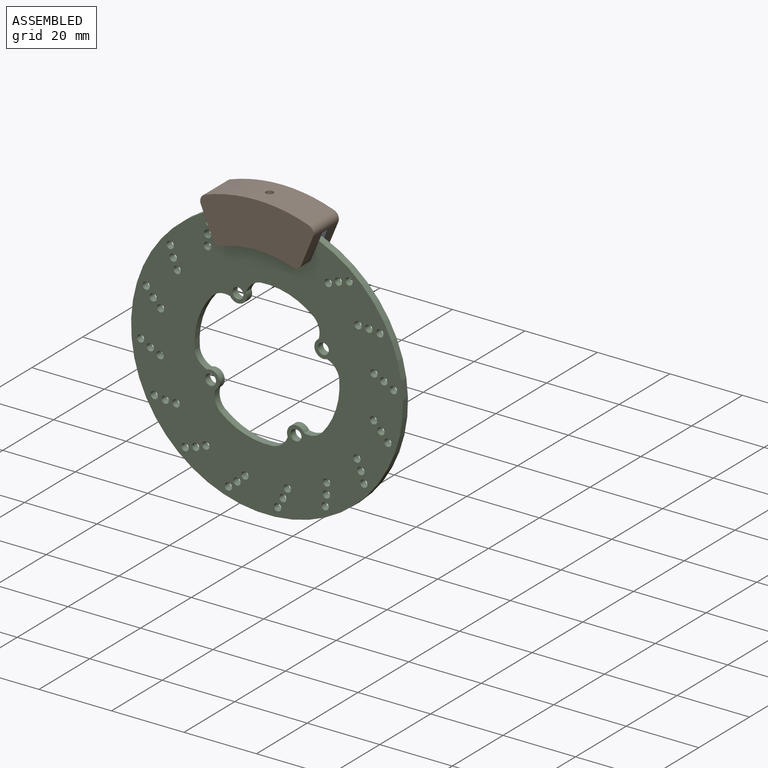
[diagram: assembled view]
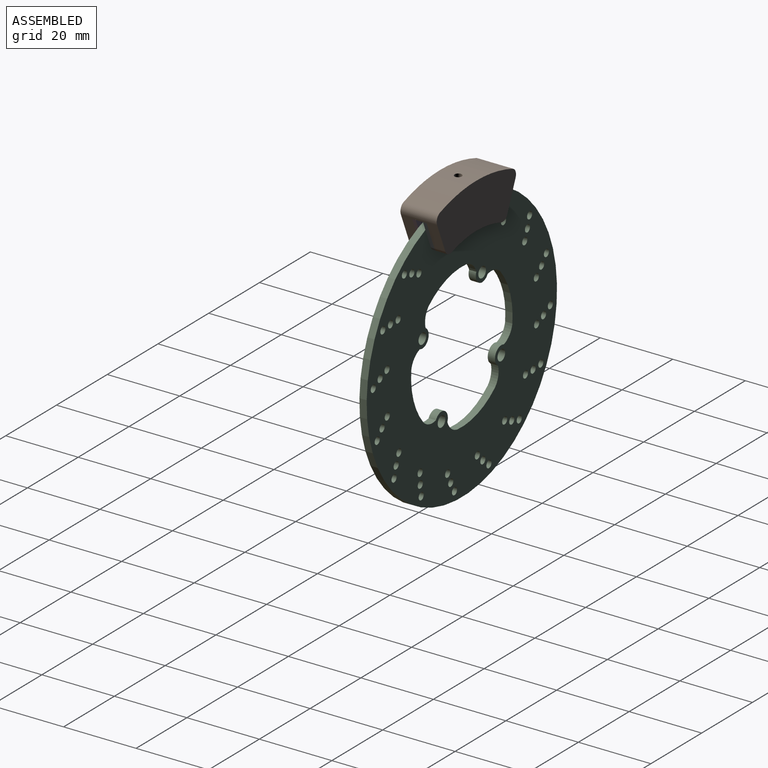
[diagram: assembled view, second angle]
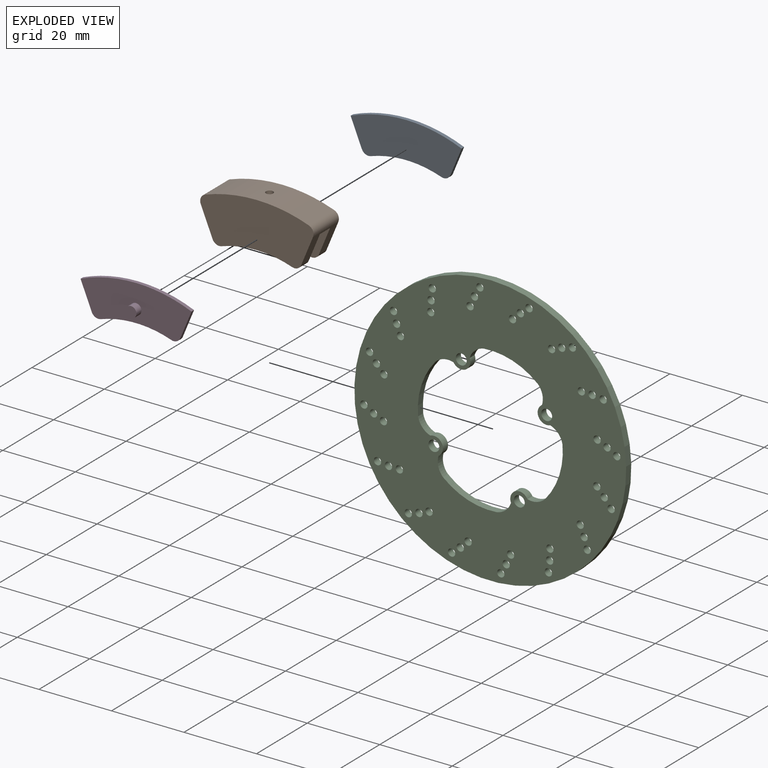
[diagram: exploded view]
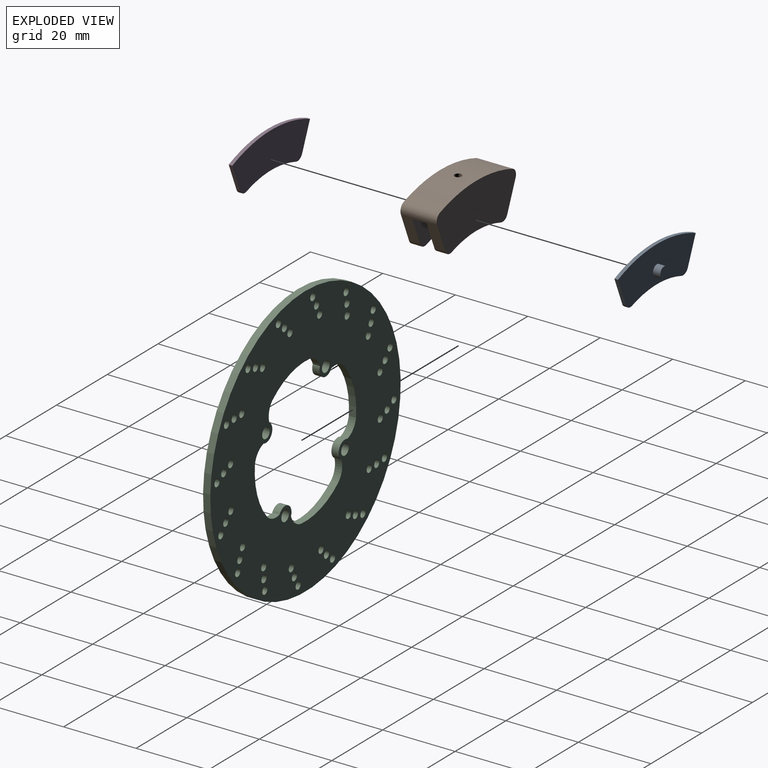
[diagram: exploded view, second angle]
ASSEMBLY  parts=4 mates=6
PART A: 10 faces, bbox 30.6x3x11.7 mm
  f0: cylinder r=2mm len=2.5mm, axis (0,1,0), area 3mm2, adj f1,f5,f6,f7
  f1: cylinder r=30mm len=19.45mm, axis (0,1,0), area 19.8mm2, adj f0,f2,f6,f7
  f2: cylinder r=2mm len=2.5mm, axis (0,1,0), area 3mm2, adj f1,f3,f6,f7
  f3: plane 7.45x3.09mm, normal (0.92,0,-0.38), area 8.1mm2, adj f2,f4,f6,f7
  f4: cylinder r=40mm len=30.61mm, axis (0,1,0), area 31.4mm2, adj f3,f5,f6,f7
  f5: plane 7.45x3.09mm, normal (-0.92,0,-0.38), area 8.1mm2, adj f0,f4,f6,f7
  f6: plane 30.61x11.73mm, normal (0,-1,0), area 273.3mm2, adj f0,f1,f2,f3,f4,f5
  f7: plane 30.61x11.73mm, normal (0,1,0), area 266.3mm2, adj f0,f1,f2,f3,f4,f5,f8
  f8: cylinder r=1.5mm len=3mm, axis (0,-1,0), area 18.8mm2, adj f7,f9
  f9: plane 3x3mm, normal (0,1,0), area 7.1mm2, adj f8
PART B: 39 faces, bbox 31.3x10x14.2 mm
  f0: plane 10x7.87mm, normal (-0.92,0,-0.38), area 52.9mm2, adj f1,f5,f10,f11,f12,f13,f14,f15
  f1: cylinder r=2mm len=3mm, axis (0,1,0), area 9mm2, adj f0,f2,f12,f14
  f2: cylinder r=30mm len=19.45mm, axis (0,1,0), area 59.4mm2, adj f1,f3,f12,f14
  f3: cylinder r=2mm len=3mm, axis (0,1,0), area 9mm2, adj f2,f4,f12,f14
  f4: plane 10x7.87mm, normal (0.92,0,-0.38), area 52.9mm2, adj f3,f7,f8,f11,f12,f13,f14,f15
  f5: cylinder r=2mm len=3mm, axis (0,1,0), area 9mm2, adj f0,f6,f11,f13
  f6: cylinder r=30mm len=19.45mm, axis (0,1,0), area 59.4mm2, adj f5,f7,f11,f13
  f7: cylinder r=2mm len=3mm, axis (0,1,0), area 9mm2, adj f4,f6,f11,f13
  f8: cylinder r=2mm len=10mm, axis (0,1,0), area 32.4mm2, adj f4,f9,f11,f12
  f9: cylinder r=42.5mm len=28.61mm, axis (0,1,0), area 288.7mm2, adj f8,f10,f11,f12,f16
  f10: cylinder r=2mm len=10mm, axis (0,1,0), area 32.4mm2, adj f0,f9,f11,f12
  f11: plane 31.26x14.23mm, normal (0,-1,0), area 352.5mm2, adj f0,f4,f5,f6,f7,f8,f9,f10
  f12: plane 31.26x14.23mm, normal (0,1,0), area 352.5mm2, adj f0,f1,f2,f3,f4,f8,f9,f10
  f13: plane 30.61x11.73mm, normal (0,1,0), area 266.3mm2, adj f0,f4,f5,f6,f7,f15,f37
  f14: plane 30.61x11.73mm, normal (0,-1,0), area 266.3mm2, adj f0,f1,f2,f3,f4,f15,f38
  f15: cylinder r=40mm len=30.61mm, axis (0,1,0), area 125.7mm2, adj f0,f4,f13,f14
  f16: cylinder r=1mm len=2mm, axis (0,0,1), area 6.8mm2, adj f9,f36
  f17: cylinder r=41mm len=29.24mm, axis (0,1,0), area 179.4mm2, adj f18,f30,f33,f34
  f18: cylinder r=1mm len=8mm, axis (0,1,0), area 9.6mm2, adj f17,f19,f25,f29,f31,f32,f33,f34
  f19: plane 7.87x3.26mm, normal (-0.92,0,0.38), area 8.5mm2, adj f18,f24,f32,f34
  f20: plane 7.87x3.26mm, normal (0.92,0,0.38), area 8.5mm2, adj f22,f30,f32,f34
  f21: plane 7.87x3.26mm, normal (0.92,0,0.38), area 8.5mm2, adj f26,f30,f31,f33
  f22: cylinder r=1mm len=1.25mm, axis (0,1,0), area 1.5mm2, adj f20,f23,f32,f34
  f23: cylinder r=31mm len=20.1mm, axis (0,1,0), area 20.5mm2, adj f22,f24,f32,f34
  f24: cylinder r=1mm len=1.25mm, axis (0,1,0), area 1.5mm2, adj f19,f23,f32,f34
  f25: plane 7.87x3.26mm, normal (-0.92,0,0.38), area 8.5mm2, adj f18,f28,f31,f33
  f26: cylinder r=1mm len=1.25mm, axis (0,1,0), area 1.5mm2, adj f21,f27,f31,f33
  f27: cylinder r=31mm len=20.1mm, axis (0,1,0), area 20.5mm2, adj f26,f28,f31,f33
  f28: cylinder r=1mm len=1.25mm, axis (0,1,0), area 1.5mm2, adj f25,f27,f31,f33
  f29: cylinder r=41.5mm len=27.94mm, axis (0,1,0), area 215.4mm2, adj f18,f30,f31,f32,f35
  f30: cylinder r=1mm len=8mm, axis (0,1,0), area 9.6mm2, adj f17,f20,f21,f29,f31,f32,f33,f34
  f31: plane 29.26x12.23mm, normal (0,1,0), area 277.1mm2, adj f18,f21,f25,f26,f27,f28,f29,f30
  f32: plane 29.26x12.23mm, normal (0,-1,0), area 277.1mm2, adj f18,f19,f20,f22,f23,f24,f29,f30
  f33: plane 29.26x11.73mm, normal (0,-1,0), area 255.2mm2, adj f17,f18,f21,f25,f26,f27,f28,f30
  f34: plane 29.26x11.73mm, normal (0,1,0), area 255.2mm2, adj f17,f18,f19,f20,f22,f23,f24,f30
  f35: cylinder r=2mm len=4mm, axis (0,0,1), area 1mm2, adj f29,f36
  f36: plane 4x4mm, normal (0,0,-1), area 9.4mm2, adj f16,f35
  f37: cylinder r=1.5mm len=3mm, axis (0,1,0), area 9.4mm2, adj f13,f33
  f38: cylinder r=1.5mm len=3mm, axis (0,-1,0), area 9.4mm2, adj f14,f34
PART C: 71 faces, bbox 75x2x75 mm
  f0: cylinder r=20mm len=11.05mm, axis (0,1,0), area 32.1mm2, adj f1,f67,f69,f70
  f1: cylinder r=5mm len=5mm, axis (0,1,0), area 10.7mm2, adj f0,f2,f69,f70
  f2: cylinder r=2.5mm len=4.99mm, axis (0,1,0), area 15.4mm2, adj f1,f3,f69,f70
  f3: cylinder r=5mm len=5mm, axis (0,1,0), area 10.8mm2, adj f2,f4,f69,f70
  f4: cylinder r=20mm len=11.05mm, axis (0,1,0), area 32.1mm2, adj f3,f5,f69,f70
  f5: cylinder r=5mm len=5mm, axis (0,1,0), area 10.8mm2, adj f4,f6,f69,f70
  f6: cylinder r=2.5mm len=4.99mm, axis (0,1,0), area 15mm2, adj f5,f7,f69,f70
  f7: cylinder r=5mm len=5mm, axis (0,1,0), area 10.8mm2, adj f6,f8,f69,f70
  f8: cylinder r=20mm len=11.05mm, axis (0,1,0), area 32.1mm2, adj f7,f9,f69,f70
  f9: cylinder r=5mm len=5mm, axis (0,1,0), area 10.8mm2, adj f8,f10,f69,f70
  f10: cylinder r=2.5mm len=4.99mm, axis (0,1,0), area 15mm2, adj f9,f11,f69,f70
  f11: cylinder r=5mm len=5mm, axis (0,1,0), area 10.8mm2, adj f10,f12,f69,f70
  f12: cylinder r=20mm len=11.05mm, axis (0,1,0), area 32.1mm2, adj f11,f13,f69,f70
  f13: cylinder r=5mm len=5mm, axis (0,1,0), area 10.8mm2, adj f12,f14,f69,f70
  f14: cylinder r=2.5mm len=4.99mm, axis (0,1,0), area 15mm2, adj f13,f67,f69,f70
  f15: cylinder r=1mm len=2mm, axis (0,1,0), area 12.6mm2, adj f69,f70
  f16: cylinder r=1mm len=2mm, axis (0,1,0), area 12.6mm2, adj f69,f70
  f17: cylinder r=1mm len=2mm, axis (0,1,0), area 12.6mm2, adj f69,f70
  f18: cylinder r=1mm len=2mm, axis (0,1,0), area 12.6mm2, adj f69,f70
  f19: cylinder r=1mm len=2mm, axis (0,1,0), area 12.6mm2, adj f69,f70
  f20: cylinder r=1mm len=2mm, axis (0,1,0), area 12.6mm2, adj f69,f70
  f21: cylinder r=1mm len=2mm, axis (0,1,0), area 12.6mm2, adj f69,f70
  f22: cylinder r=1mm len=2mm, axis (0,1,0), area 12.6mm2, adj f69,f70
  f23: cylinder r=1mm len=2mm, axis (0,1,0), area 12.6mm2, adj f69,f70
  f24: cylinder r=1mm len=2mm, axis (0,1,0), area 12.6mm2, adj f69,f70
  f25: cylinder r=1mm len=2mm, axis (0,1,0), area 12.6mm2, adj f69,f70
  f26: cylinder r=1mm len=2mm, axis (0,1,0), area 12.6mm2, adj f69,f70
  f27: cylinder r=1mm len=2mm, axis (0,1,0), area 12.6mm2, adj f69,f70
  f28: cylinder r=1mm len=2mm, axis (0,1,0), area 12.6mm2, adj f69,f70
  f29: cylinder r=1mm len=2mm, axis (0,1,0), area 12.6mm2, adj f69,f70
  f30: cylinder r=1mm len=2mm, axis (0,1,0), area 12.6mm2, adj f69,f70
  f31: cylinder r=1mm len=2mm, axis (0,1,0), area 12.6mm2, adj f69,f70
  f32: cylinder r=1mm len=2mm, axis (0,1,0), area 12.6mm2, adj f69,f70
  f33: cylinder r=1mm len=2mm, axis (0,1,0), area 12.6mm2, adj f69,f70
  f34: cylinder r=1mm len=2mm, axis (0,1,0), area 12.6mm2, adj f69,f70
  f35: cylinder r=1mm len=2mm, axis (0,1,0), area 12.6mm2, adj f69,f70
  f36: cylinder r=1mm len=2mm, axis (0,1,0), area 12.6mm2, adj f69,f70
  f37: cylinder r=1mm len=2mm, axis (0,1,0), area 12.6mm2, adj f69,f70
  f38: cylinder r=1mm len=2mm, axis (0,1,0), area 12.6mm2, adj f69,f70
  f39: cylinder r=1mm len=2mm, axis (0,1,0), area 12.6mm2, adj f69,f70
  f40: cylinder r=1mm len=2mm, axis (0,1,0), area 12.6mm2, adj f69,f70
  f41: cylinder r=1mm len=2mm, axis (0,1,0), area 12.6mm2, adj f69,f70
  f42: cylinder r=1mm len=2mm, axis (0,1,0), area 12.6mm2, adj f69,f70
  f43: cylinder r=1mm len=2mm, axis (0,1,0), area 12.6mm2, adj f69,f70
  f44: cylinder r=1mm len=2mm, axis (0,1,0), area 12.6mm2, adj f69,f70
  f45: cylinder r=1mm len=2mm, axis (0,1,0), area 12.6mm2, adj f69,f70
  f46: cylinder r=1mm len=2mm, axis (0,1,0), area 12.6mm2, adj f69,f70
  f47: cylinder r=1mm len=2mm, axis (0,1,0), area 12.6mm2, adj f69,f70
  f48: cylinder r=1mm len=2mm, axis (0,1,0), area 12.6mm2, adj f69,f70
  f49: cylinder r=1mm len=2mm, axis (0,1,0), area 12.6mm2, adj f69,f70
  f50: cylinder r=1mm len=2mm, axis (0,1,0), area 12.6mm2, adj f69,f70
  f51: cylinder r=1mm len=2mm, axis (0,1,0), area 12.6mm2, adj f69,f70
  f52: cylinder r=1mm len=2mm, axis (0,1,0), area 12.6mm2, adj f69,f70
  f53: cylinder r=1mm len=2mm, axis (0,1,0), area 12.6mm2, adj f69,f70
  f54: cylinder r=1mm len=2mm, axis (0,1,0), area 12.6mm2, adj f69,f70
  f55: cylinder r=1mm len=2mm, axis (0,1,0), area 12.6mm2, adj f69,f70
  f56: cylinder r=1mm len=2mm, axis (0,1,0), area 12.6mm2, adj f69,f70
  f57: cylinder r=1mm len=2mm, axis (0,1,0), area 12.6mm2, adj f69,f70
  f58: cylinder r=1mm len=2mm, axis (0,1,0), area 12.6mm2, adj f69,f70
  f59: cylinder r=1mm len=2mm, axis (0,1,0), area 12.6mm2, adj f69,f70
  f60: cylinder r=1mm len=2mm, axis (0,1,0), area 12.6mm2, adj f69,f70
  f61: cylinder r=1mm len=2mm, axis (0,1,0), area 12.6mm2, adj f69,f70
  f62: cylinder r=1mm len=2mm, axis (0,1,0), area 12.6mm2, adj f69,f70
  f63: cylinder r=1.5mm len=3mm, axis (0,1,0), area 18.8mm2, adj f69,f70
  f64: cylinder r=1.5mm len=3mm, axis (0,1,0), area 18.8mm2, adj f69,f70
  f65: cylinder r=1.5mm len=3mm, axis (0,1,0), area 18.8mm2, adj f69,f70
  f66: cylinder r=1.5mm len=3mm, axis (0,1,0), area 18.8mm2, adj f69,f70
  f67: cylinder r=5mm len=5mm, axis (0,1,0), area 10.8mm2, adj f0,f14,f69,f70
  f68: cylinder r=37.5mm len=75mm, axis (0,1,0), area 471.2mm2, adj f69,f70
  f69: plane 75x75mm, normal (0,-1,0), area 3105.1mm2, adj f0,f1,f2,f3,f4,f5,f6,f7
  f70: plane 75x75mm, normal (0,1,0), area 3105.1mm2, adj f0,f1,f2,f3,f4,f5,f6,f7
PART D: 10 faces, bbox 30.6x3x11.7 mm
  f0: plane 7.45x3.09mm, normal (-0.92,0,-0.38), area 8.1mm2, adj f1,f5,f6,f7
  f1: cylinder r=40mm len=30.61mm, axis (0,-1,0), area 31.4mm2, adj f0,f2,f6,f7
  f2: plane 7.45x3.09mm, normal (0.92,0,-0.38), area 8.1mm2, adj f1,f3,f6,f7
  f3: cylinder r=2mm len=2.5mm, axis (0,-1,0), area 3mm2, adj f2,f4,f6,f7
  f4: cylinder r=30mm len=19.45mm, axis (0,-1,0), area 19.8mm2, adj f3,f5,f6,f7
  f5: cylinder r=2mm len=2.5mm, axis (0,-1,0), area 3mm2, adj f0,f4,f6,f7
  f6: plane 30.61x11.73mm, normal (0,1,0), area 273.3mm2, adj f0,f1,f2,f3,f4,f5
  f7: plane 30.61x11.73mm, normal (0,-1,0), area 266.3mm2, adj f0,f1,f2,f3,f4,f5,f8
  f8: cylinder r=1.5mm len=3mm, axis (0,1,0), area 18.8mm2, adj f7,f9
  f9: plane 3x3mm, normal (0,-1,0), area 7.1mm2, adj f8
PLACE A t=(-9.4,4.26,-16.85)mm
PLACE B t=(-9.4,4.26,-16.85)mm fixed
PLACE C rot(axis=(0,1,0),62.8deg) t=(-9.4,5.26,-16.85)mm
PLACE D t=(-9.4,4.26,-16.85)mm
MATE revolute D.f1 <-> B.f15  axis (0,-1,0) through (-9.4,2.76,-16.85)mm
MATE parallel D.f2 <-> B.f4  axis (0.92,0,-0.38) through (4.37,2.76,16.38)mm
MATE parallel D.f7 <-> B.f11  axis (0,-1,0) through (-9.4,2.26,17.55)mm
MATE revolute B.f15 <-> A.f4  axis (0,1,0) through (-9.4,4.26,-16.85)mm
MATE parallel D.f0 <-> A.f5  axis (-0.92,0,-0.38) through (-24.7,2.76,20.11)mm
MATE revolute C.f68 <-> B.f15  axis (0,1,0) through (-9.4,4.26,-16.85)mm
